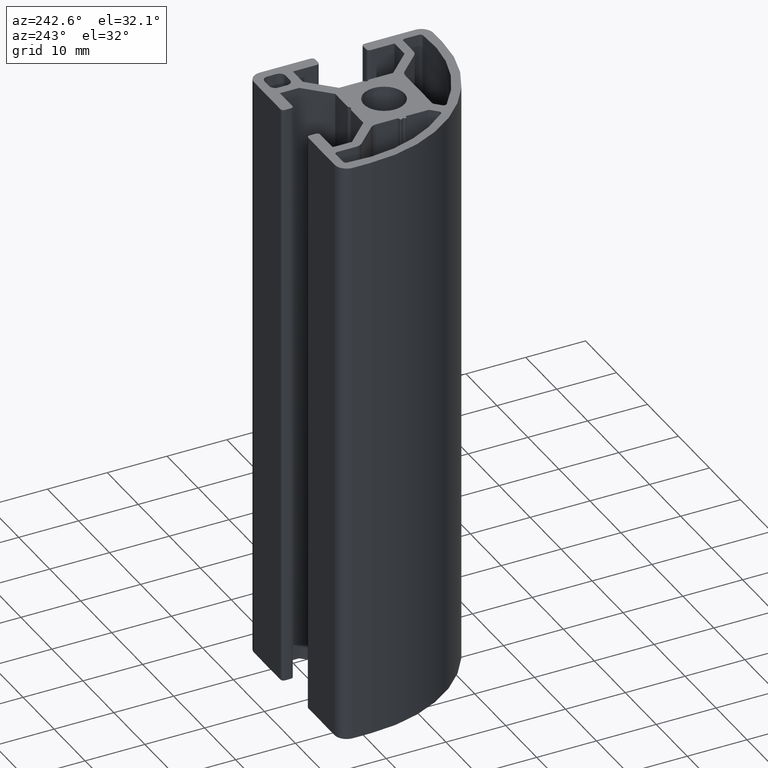
[diagram: clean part render]
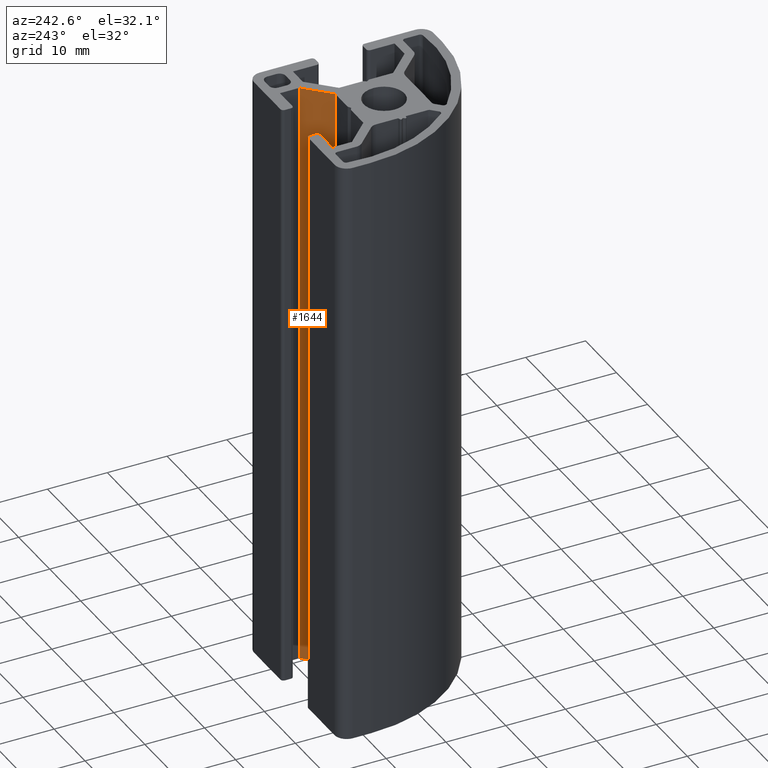
[diagram: same view with one face highlighted and labeled with its STEP entity id]
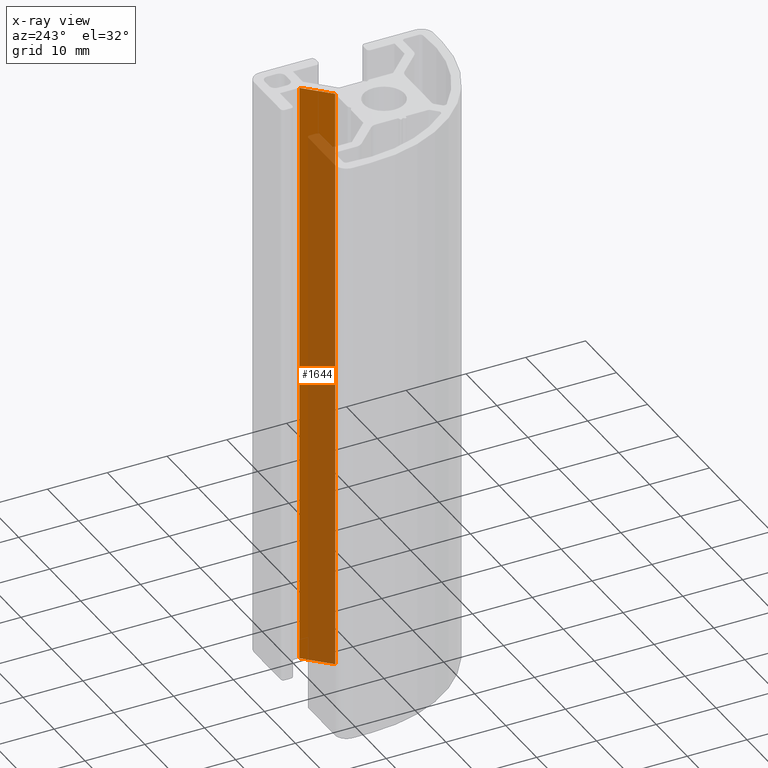
[diagram: x-ray of the same camera — body ghosted, the highlighted face saturated]
A machine part, auxiliary view. The second image highlights one B-rep face of the part: STEP entity #1644.
The next image is the same camera in x-ray: the body ghosted, the highlighted face saturated — about 70% of this face is hidden behind the body in this view.
In plain terms, the highlighted planar face has unit normal (0.7071, -0.7071, 0).
Its self-contained STEP definition (entity closure, byte-faithful):
#42=PLANE('',#1766);
#111=FACE_OUTER_BOUND('',#196,.T.);
#196=EDGE_LOOP('',(#1227,#1228,#1229,#1230));
#323=LINE('',#2545,#502);
#325=LINE('',#2549,#504);
#326=LINE('',#2551,#505);
#327=LINE('',#2552,#506);
#502=VECTOR('',#2061,100.);
#504=VECTOR('',#2065,5.61837777381443);
#505=VECTOR('',#2066,100.);
#506=VECTOR('',#2067,5.61837777381443);
#750=VERTEX_POINT('',#2542);
#751=VERTEX_POINT('',#2544);
#752=VERTEX_POINT('',#2548);
#753=VERTEX_POINT('',#2550);
#947=EDGE_CURVE('',#751,#750,#323,.T.);
#949=EDGE_CURVE('',#752,#750,#325,.T.);
#950=EDGE_CURVE('',#753,#752,#326,.T.);
#951=EDGE_CURVE('',#751,#753,#327,.T.);
#1227=ORIENTED_EDGE('',*,*,#949,.F.);
#1228=ORIENTED_EDGE('',*,*,#950,.F.);
#1229=ORIENTED_EDGE('',*,*,#951,.F.);
#1230=ORIENTED_EDGE('',*,*,#947,.T.);
#1644=ADVANCED_FACE('',(#111),#42,.F.);
#1766=AXIS2_PLACEMENT_3D('',#2547,#2063,#2064);
#2061=DIRECTION('',(0.,0.,1.));
#2063=DIRECTION('center_axis',(0.707106779731151,-0.707106782641944,0.));
#2064=DIRECTION('ref_axis',(0.707106782641944,0.707106779731151,0.));
#2065=DIRECTION('',(-0.707106782641944,-0.707106779731151,0.));
#2066=DIRECTION('',(0.,0.,1.));
#2067=DIRECTION('',(0.707106782641944,0.707106779731151,0.));
#2542=CARTESIAN_POINT('',(4.52720780455896,5.80000092203315,100.));
#2544=CARTESIAN_POINT('',(4.52720780455896,5.80000092203315,0.));
#2545=CARTESIAN_POINT('',(4.52720780455896,5.80000092203315,0.));
#2547=CARTESIAN_POINT('Origin',(4.52720780455896,5.80000092203315,0.));
#2548=CARTESIAN_POINT('',(8.50000083586789,9.77279393698814,100.));
#2549=CARTESIAN_POINT('',(1.94540561834926,3.21819874645139,100.));
#2550=CARTESIAN_POINT('',(8.50000083586789,9.77279393698814,0.));
#2551=CARTESIAN_POINT('',(8.50000083586789,9.77279393698814,0.));
#2552=CARTESIAN_POINT('',(1.94540561834926,3.21819874645139,0.));